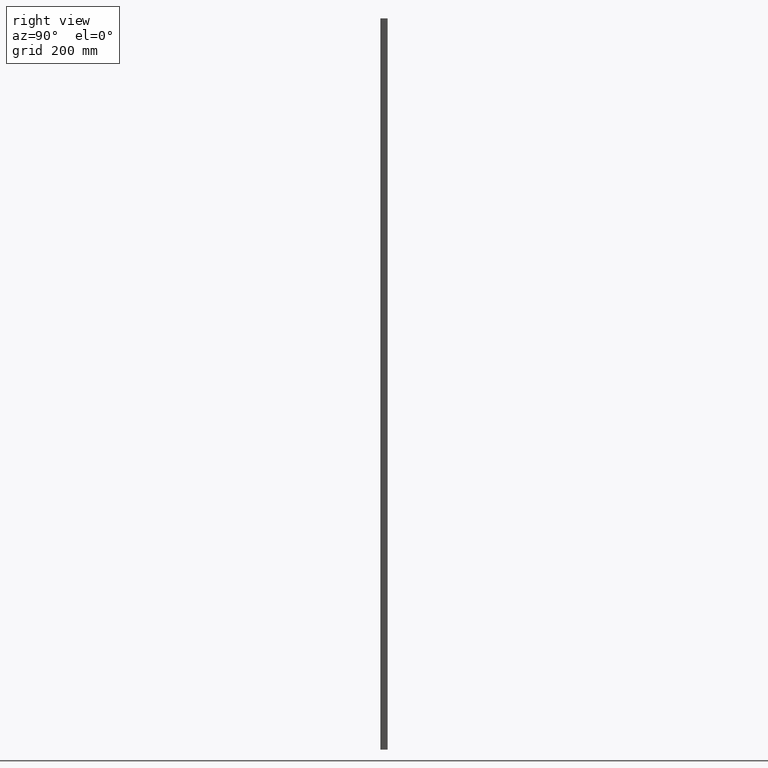
[diagram: clean part render]
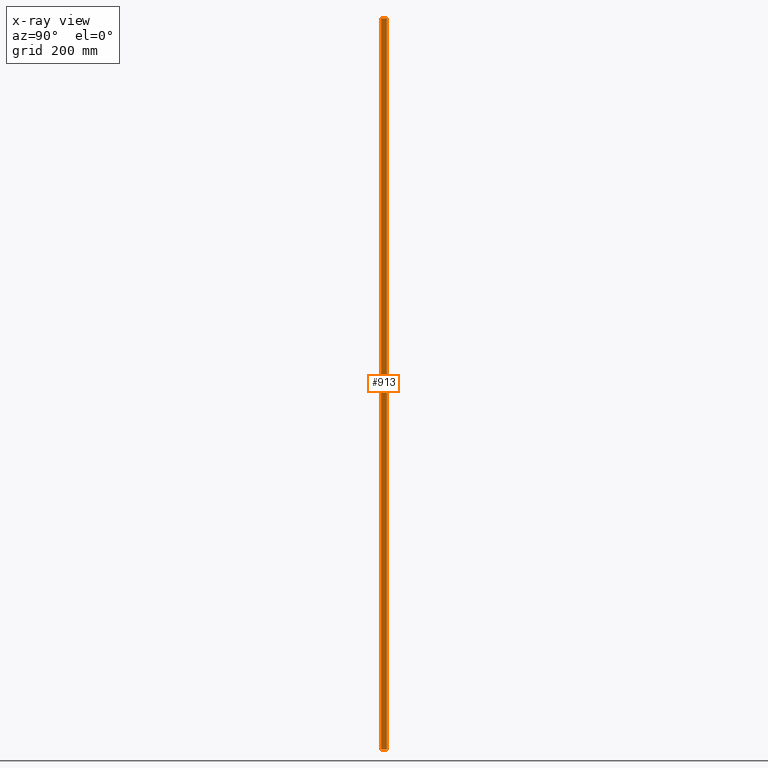
[diagram: x-ray — body ghosted, one internal face saturated and labeled with its STEP entity id]
A machine part, right view, then the same camera in x-ray: the body is ghosted and one INTERNAL B-rep face — a face not visible from any outside direction — is saturated and labeled: STEP entity #913.
In plain terms, the highlighted planar face has unit normal (-1, 0, 0).
Its self-contained STEP definition (entity closure, byte-faithful):
#1 = VECTOR ( 'NONE', #529, 1000.000000000000000 ) ;
#2 = VERTEX_POINT ( 'NONE', #55 ) ;
#12 = DIRECTION ( 'NONE',  ( 0.0000000000000000000, 0.0000000000000000000, 1.000000000000000000 ) ) ;
#55 = CARTESIAN_POINT ( 'NONE',  ( 1.750000000000001300, 8.699999999999995700, 1250.000000000000000 ) ) ;
#68 = AXIS2_PLACEMENT_3D ( 'NONE', #295, #426, #12 ) ;
#73 = LINE ( 'NONE', #551, #387 ) ;
#181 = VERTEX_POINT ( 'NONE', #834 ) ;
#187 = VERTEX_POINT ( 'NONE', #824 ) ;
#248 = EDGE_CURVE ( 'NONE', #181, #687, #869, .T. ) ;
#295 = CARTESIAN_POINT ( 'NONE',  ( 1.750000000000000200, -8.699999999999995700, 1250.000000000000000 ) ) ;
#306 = EDGE_CURVE ( 'NONE', #687, #187, #648, .T. ) ;
#330 = ORIENTED_EDGE ( 'NONE', *, *, #348, .F. ) ;
#335 = EDGE_CURVE ( 'NONE', #2, #187, #73, .T. ) ;
#348 = EDGE_CURVE ( 'NONE', #181, #2, #715, .T. ) ;
#380 = ORIENTED_EDGE ( 'NONE', *, *, #248, .T. ) ;
#387 = VECTOR ( 'NONE', #540, 1000.000000000000000 ) ;
#426 = DIRECTION ( 'NONE',  ( -1.000000000000000000, 0.0000000000000000000, 0.0000000000000000000 ) ) ;
#529 = DIRECTION ( 'NONE',  ( 0.0000000000000000000, 1.000000000000000000, 0.0000000000000000000 ) ) ;
#540 = DIRECTION ( 'NONE',  ( -0.0000000000000000000, -0.0000000000000000000, -1.000000000000000000 ) ) ;
#544 = CARTESIAN_POINT ( 'NONE',  ( 1.750000000000000200, -8.699999999999995700, 1250.000000000000000 ) ) ;
#551 = CARTESIAN_POINT ( 'NONE',  ( 1.750000000000001300, 8.699999999999995700, 1250.000000000000000 ) ) ;
#622 = VECTOR ( 'NONE', #627, 1000.000000000000000 ) ;
#624 = ORIENTED_EDGE ( 'NONE', *, *, #335, .F. ) ;
#627 = DIRECTION ( 'NONE',  ( 0.0000000000000000000, 1.000000000000000000, 0.0000000000000000000 ) ) ;
#642 = CARTESIAN_POINT ( 'NONE',  ( 1.750000000000000200, -8.699999999999995700, -1250.000000000000000 ) ) ;
#648 = LINE ( 'NONE', #642, #622 ) ;
#687 = VERTEX_POINT ( 'NONE', #760 ) ;
#704 = FACE_OUTER_BOUND ( 'NONE', #862, .T. ) ;
#708 = ORIENTED_EDGE ( 'NONE', *, *, #306, .T. ) ;
#715 = LINE ( 'NONE', #544, #1 ) ;
#732 = DIRECTION ( 'NONE',  ( -0.0000000000000000000, -0.0000000000000000000, -1.000000000000000000 ) ) ;
#737 = CARTESIAN_POINT ( 'NONE',  ( 1.750000000000000200, -8.699999999999995700, 1250.000000000000000 ) ) ;
#760 = CARTESIAN_POINT ( 'NONE',  ( 1.750000000000000200, -8.699999999999995700, -1250.000000000000000 ) ) ;
#821 = VECTOR ( 'NONE', #732, 1000.000000000000000 ) ;
#824 = CARTESIAN_POINT ( 'NONE',  ( 1.750000000000001300, 8.699999999999995700, -1250.000000000000000 ) ) ;
#834 = CARTESIAN_POINT ( 'NONE',  ( 1.750000000000000200, -8.699999999999995700, 1250.000000000000000 ) ) ;
#853 = PLANE ( 'NONE',  #68 ) ;
#862 = EDGE_LOOP ( 'NONE', ( #708, #624, #330, #380 ) ) ;
#869 = LINE ( 'NONE', #737, #821 ) ;
#913 = ADVANCED_FACE ( 'NONE', ( #704 ), #853, .F. ) ;